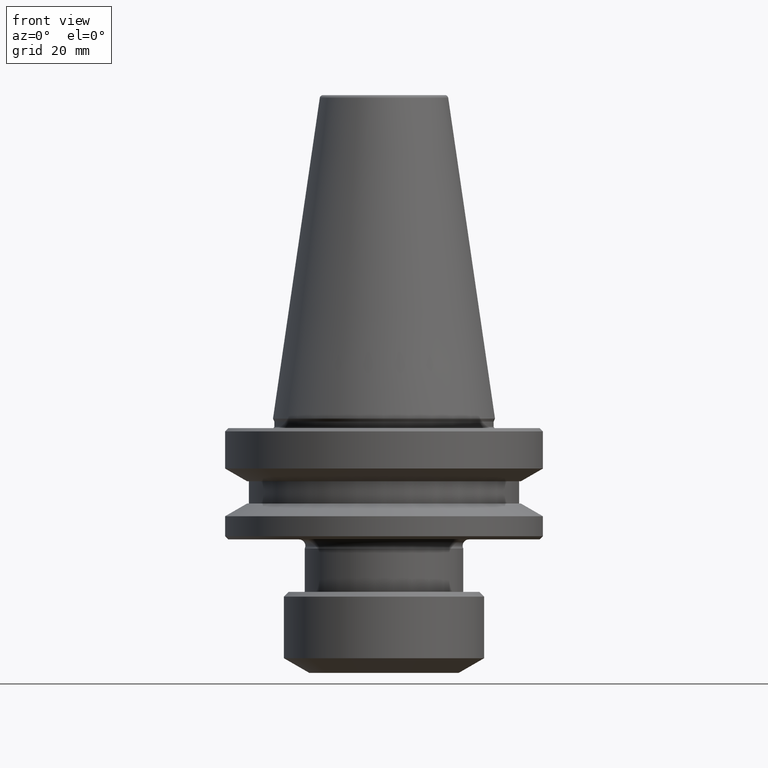
[diagram: clean part render]
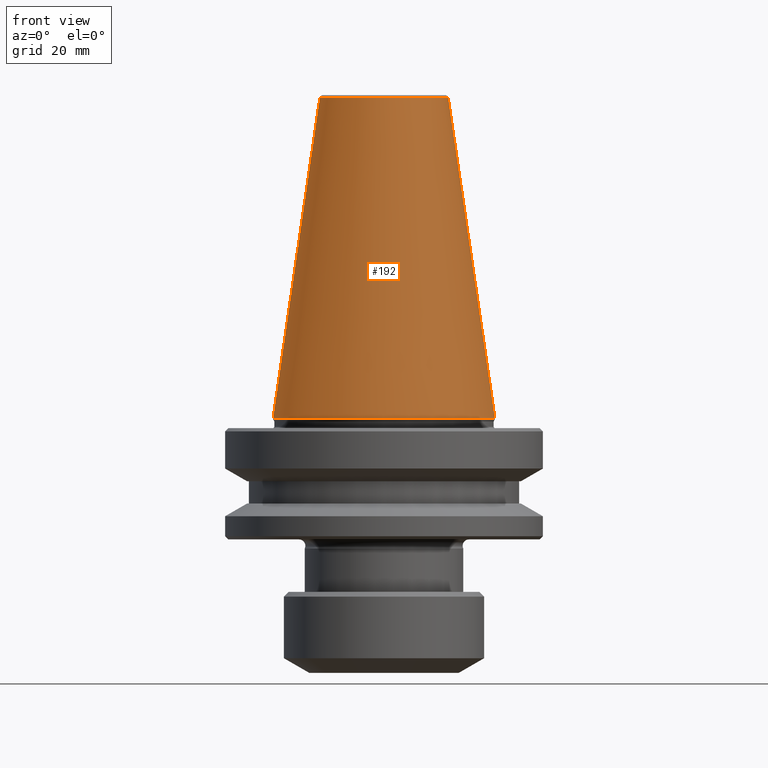
[diagram: same view with one face highlighted and labeled with its STEP entity id]
A machine part, front view. The second image highlights one B-rep face of the part: STEP entity #192.
In plain terms, the highlighted conical surface has half-angle 8.297 deg.
Its self-contained STEP definition (entity closure, byte-faithful):
#51 = DIRECTION ( 'NONE',  ( -0.0000000000000000000, -0.0000000000000000000, 1.000000000000000000 ) ) ;
#137 = CARTESIAN_POINT ( 'NONE',  ( 34.92499999999942900, 0.0000000000000000000, 1.084202172485504400E-016 ) ) ;
#143 = ORIENTED_EDGE ( 'NONE', *, *, #1015, .T. ) ;
#191 = ORIENTED_EDGE ( 'NONE', *, *, #806, .F. ) ;
#192 = ADVANCED_FACE ( 'NONE', ( #715 ), #215, .T. ) ;
#201 = VECTOR ( 'NONE', #719, 1000.000000000000100 ) ;
#215 = CONICAL_SURFACE ( 'NONE', #964, 34.92499999999942900, 0.1448138426689056000 ) ;
#263 = CARTESIAN_POINT ( 'NONE',  ( 20.20381645192148700, 3.375666430431344500E-015, 100.9443082234283700 ) ) ;
#286 = ORIENTED_EDGE ( 'NONE', *, *, #472, .F. ) ;
#298 = EDGE_CURVE ( 'NONE', #530, #764, #411, .T. ) ;
#330 = CARTESIAN_POINT ( 'NONE',  ( 34.92499999999942900, 4.277078946022061500E-015, 0.0000000000000000000 ) ) ;
#411 = CIRCLE ( 'NONE', #448, 34.92499999999942900 ) ;
#421 = AXIS2_PLACEMENT_3D ( 'NONE', #589, #51, #686 ) ;
#442 = CARTESIAN_POINT ( 'NONE',  ( -34.92499999999942900, 4.277078946022061500E-015, 1.084202172485504400E-016 ) ) ;
#448 = AXIS2_PLACEMENT_3D ( 'NONE', #986, #802, #1041 ) ;
#472 = EDGE_CURVE ( 'NONE', #989, #764, #534, .T. ) ;
#507 = VECTOR ( 'NONE', #743, 1000.000000000000100 ) ;
#510 = EDGE_LOOP ( 'NONE', ( #286, #191, #143, #1061 ) ) ;
#530 = VERTEX_POINT ( 'NONE', #442 ) ;
#534 = LINE ( 'NONE', #330, #507 ) ;
#554 = CARTESIAN_POINT ( 'NONE',  ( -20.20381645192148700, 0.0000000000000000000, 100.9443082234283700 ) ) ;
#558 = VERTEX_POINT ( 'NONE', #554 ) ;
#589 = CARTESIAN_POINT ( 'NONE',  ( 0.0000000000000000000, 0.0000000000000000000, 100.9443082234283700 ) ) ;
#686 = DIRECTION ( 'NONE',  ( 1.000000000000000000, 0.0000000000000000000, 0.0000000000000000000 ) ) ;
#715 = FACE_OUTER_BOUND ( 'NONE', #510, .T. ) ;
#719 = DIRECTION ( 'NONE',  ( -0.1443082234293907600, 0.0000000000000000000, -0.9895327870518757500 ) ) ;
#743 = DIRECTION ( 'NONE',  ( 0.1443082234293907600, 1.767266039134444800E-017, -0.9895327870518757500 ) ) ;
#749 = DIRECTION ( 'NONE',  ( 0.0000000000000000000, 0.0000000000000000000, -1.000000000000000000 ) ) ;
#764 = VERTEX_POINT ( 'NONE', #137 ) ;
#774 = DIRECTION ( 'NONE',  ( -1.000000000000000000, 0.0000000000000000000, 0.0000000000000000000 ) ) ;
#802 = DIRECTION ( 'NONE',  ( -0.0000000000000000000, -0.0000000000000000000, 1.000000000000000000 ) ) ;
#806 = EDGE_CURVE ( 'NONE', #558, #989, #953, .T. ) ;
#927 = LINE ( 'NONE', #1180, #201 ) ;
#953 = CIRCLE ( 'NONE', #421, 20.20381645192148700 ) ;
#964 = AXIS2_PLACEMENT_3D ( 'NONE', #1068, #749, #774 ) ;
#986 = CARTESIAN_POINT ( 'NONE',  ( 0.0000000000000000000, 0.0000000000000000000, 0.0000000000000000000 ) ) ;
#989 = VERTEX_POINT ( 'NONE', #263 ) ;
#1015 = EDGE_CURVE ( 'NONE', #558, #530, #927, .T. ) ;
#1041 = DIRECTION ( 'NONE',  ( 1.000000000000000000, 0.0000000000000000000, 0.0000000000000000000 ) ) ;
#1061 = ORIENTED_EDGE ( 'NONE', *, *, #298, .T. ) ;
#1068 = CARTESIAN_POINT ( 'NONE',  ( 0.0000000000000000000, 0.0000000000000000000, 0.0000000000000000000 ) ) ;
#1180 = CARTESIAN_POINT ( 'NONE',  ( -34.92499999999942900, 0.0000000000000000000, 0.0000000000000000000 ) ) ;